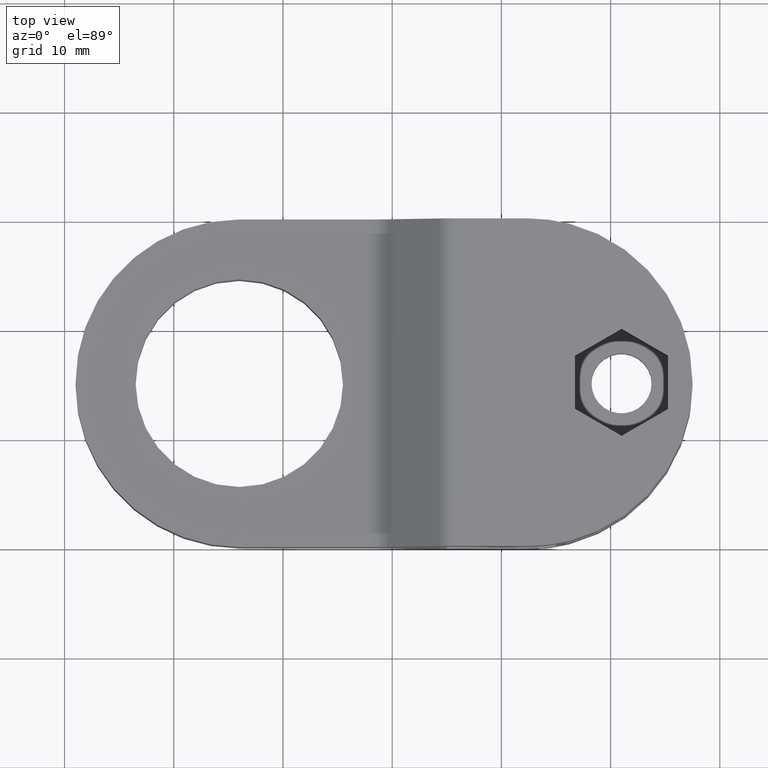
[diagram: clean part render]
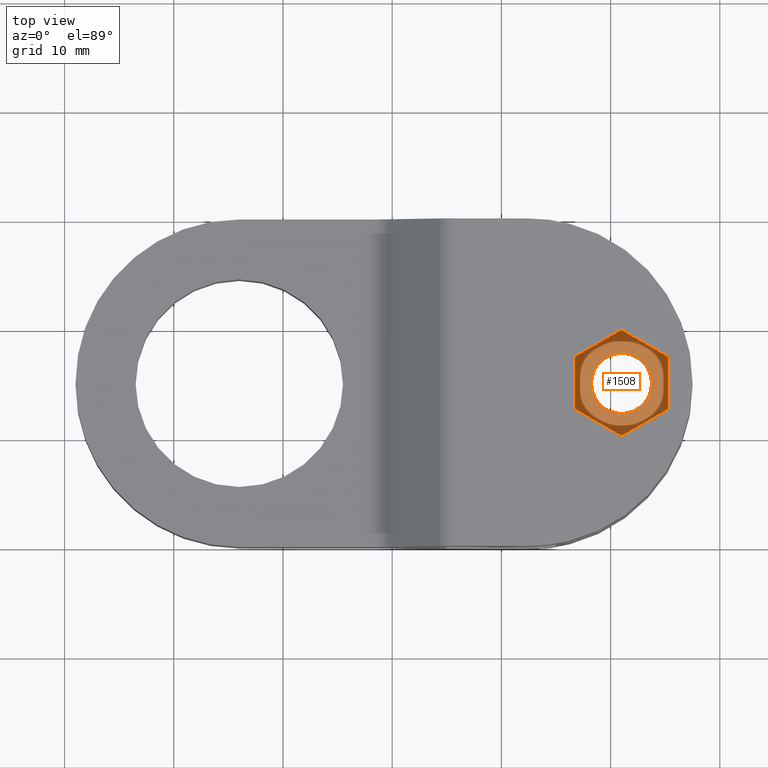
[diagram: same view with one face highlighted and labeled with its STEP entity id]
A machine part, top view. The second image highlights one B-rep face of the part: STEP entity #1508.
In plain terms, the highlighted planar face has unit normal (0, 0, 1).
Its self-contained STEP definition (entity closure, byte-faithful):
#1317=CARTESIAN_POINT('',(8.249972875253775,-15.000000000000014,3.518559502653545));
#1318=VERTEX_POINT('',#1317);
#1325=CARTESIAN_POINT('',(13.749972875253775,-15.000000000000014,3.518559502653546));
#1326=VERTEX_POINT('',#1325);
#1327=CARTESIAN_POINT('',(10.999972875253775,-15.000000000000014,3.518559502653545));
#1328=DIRECTION('',(2.537653E-016,0.0,-1.0));
#1329=DIRECTION('',(-1.0,0.0,-2.537653E-016));
#1330=AXIS2_PLACEMENT_3D('',#1327,#1328,#1329);
#1331=CIRCLE('',#1330,2.750000000000000);
#1332=EDGE_CURVE('',#1326,#1318,#1331,.T.);
#1334=CARTESIAN_POINT('',(10.999972875253775,-15.000000000000014,3.518559502653545));
#1335=DIRECTION('',(2.537653E-016,0.0,-1.0));
#1336=DIRECTION('',(-1.0,0.0,-2.537653E-016));
#1337=AXIS2_PLACEMENT_3D('',#1334,#1335,#1336);
#1338=CIRCLE('',#1337,2.750000000000000);
#1339=EDGE_CURVE('',#1318,#1326,#1338,.T.);
#1352=CARTESIAN_POINT('',(15.249972875253775,-17.453738644055925,3.518559502653545));
#1353=VERTEX_POINT('',#1352);
#1361=CARTESIAN_POINT('',(15.249972875253775,-12.546261355944104,3.518559502653545));
#1362=VERTEX_POINT('',#1361);
#1369=CARTESIAN_POINT('',(15.249972875253775,-17.453738644055925,3.518559502653545));
#1370=DIRECTION('',(0.0,1.0,0.0));
#1371=VECTOR('',#1370,4.907477288111821);
#1372=LINE('',#1369,#1371);
#1373=EDGE_CURVE('',#1353,#1362,#1372,.T.);
#1385=CARTESIAN_POINT('',(10.999972875253775,-10.092522711888193,3.518559502653545));
#1386=VERTEX_POINT('',#1385);
#1393=CARTESIAN_POINT('',(15.249972875253775,-12.546261355944104,3.518559502653545));
#1394=DIRECTION('',(-0.866025403784439,0.500000000000000,0.0));
#1395=VECTOR('',#1394,4.907477288111819);
#1396=LINE('',#1393,#1395);
#1397=EDGE_CURVE('',#1362,#1386,#1396,.T.);
#1409=CARTESIAN_POINT('',(6.749972875253775,-12.546261355944104,3.518559502653531));
#1410=VERTEX_POINT('',#1409);
#1417=CARTESIAN_POINT('',(10.999972875253775,-10.092522711888193,3.518559502653545));
#1418=DIRECTION('',(-0.866025403784439,-0.500000000000000,0.0));
#1419=VECTOR('',#1418,4.907477288111819);
#1420=LINE('',#1417,#1419);
#1421=EDGE_CURVE('',#1386,#1410,#1420,.T.);
#1433=CARTESIAN_POINT('',(6.749972875253775,-17.453738644055925,3.518559502653531));
#1434=VERTEX_POINT('',#1433);
#1441=CARTESIAN_POINT('',(6.749972875253775,-12.546261355944104,3.518559502653531));
#1442=DIRECTION('',(0.0,-1.0,0.0));
#1443=VECTOR('',#1442,4.907477288111821);
#1444=LINE('',#1441,#1443);
#1445=EDGE_CURVE('',#1410,#1434,#1444,.T.);
#1457=CARTESIAN_POINT('',(10.999972875253775,-19.907477288111835,3.518559502653545));
#1458=VERTEX_POINT('',#1457);
#1465=CARTESIAN_POINT('',(6.749972875253775,-17.453738644055925,3.518559502653531));
#1466=DIRECTION('',(0.866025403784439,-0.500000000000000,0.0));
#1467=VECTOR('',#1466,4.907477288111819);
#1468=LINE('',#1465,#1467);
#1469=EDGE_CURVE('',#1434,#1458,#1468,.T.);
#1479=CARTESIAN_POINT('',(10.999972875253775,-19.907477288111835,3.518559502653545));
#1480=DIRECTION('',(0.866025403784439,0.500000000000000,0.0));
#1481=VECTOR('',#1480,4.907477288111819);
#1482=LINE('',#1479,#1481);
#1483=EDGE_CURVE('',#1458,#1353,#1482,.T.);
#1491=CARTESIAN_POINT('',(16.100660665226485,-20.889660535705481,3.518559502653545));
#1492=DIRECTION('',(0.0,0.0,1.0));
#1493=DIRECTION('',(0.0,1.0,0.0));
#1494=AXIS2_PLACEMENT_3D('',#1491,#1492,#1493);
#1495=PLANE('',#1494);
#1496=ORIENTED_EDGE('',*,*,#1373,.T.);
#1497=ORIENTED_EDGE('',*,*,#1397,.T.);
#1498=ORIENTED_EDGE('',*,*,#1421,.T.);
#1499=ORIENTED_EDGE('',*,*,#1445,.T.);
#1500=ORIENTED_EDGE('',*,*,#1469,.T.);
#1501=ORIENTED_EDGE('',*,*,#1483,.T.);
#1502=EDGE_LOOP('',(#1496,#1497,#1498,#1499,#1500,#1501));
#1503=FACE_OUTER_BOUND('',#1502,.T.);
#1504=ORIENTED_EDGE('',*,*,#1339,.T.);
#1505=ORIENTED_EDGE('',*,*,#1332,.T.);
#1506=EDGE_LOOP('',(#1504,#1505));
#1507=FACE_BOUND('',#1506,.T.);
#1508=ADVANCED_FACE('',(#1503,#1507),#1495,.T.);